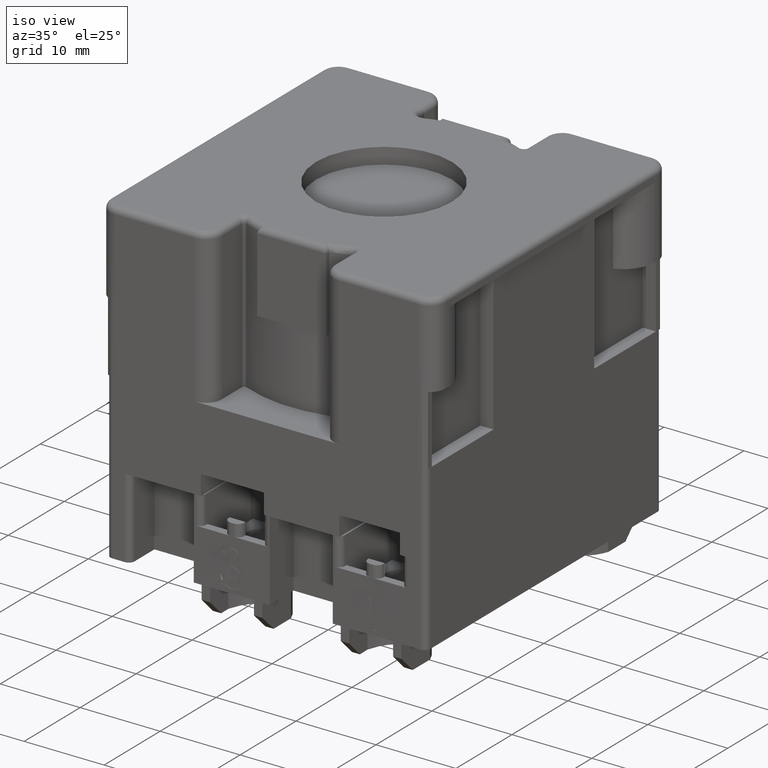
[diagram: clean part render]
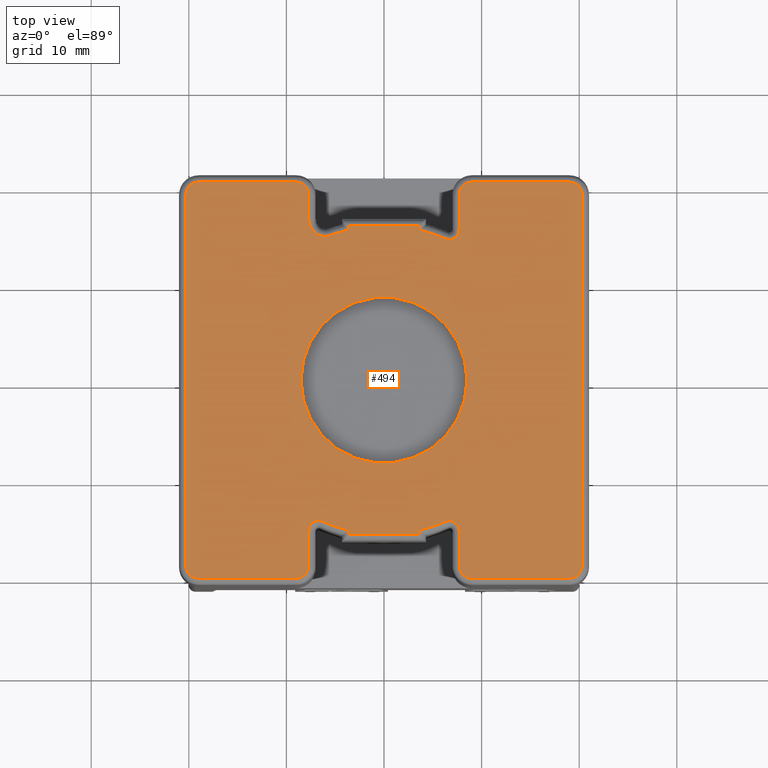
[diagram: tour spotlight — one face highlighted and labeled with its STEP entity id]
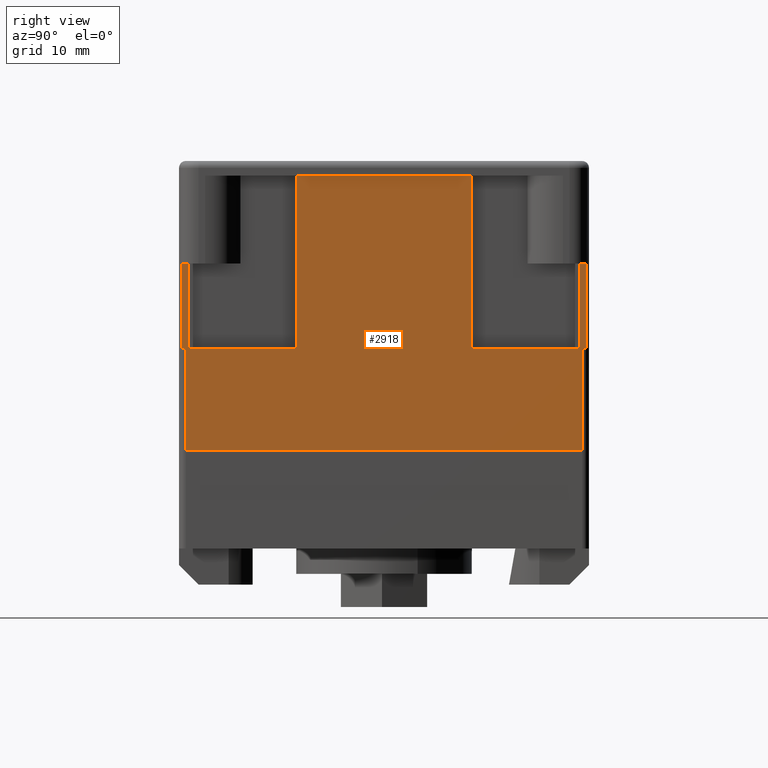
[diagram: tour spotlight — one face highlighted and labeled with its STEP entity id]
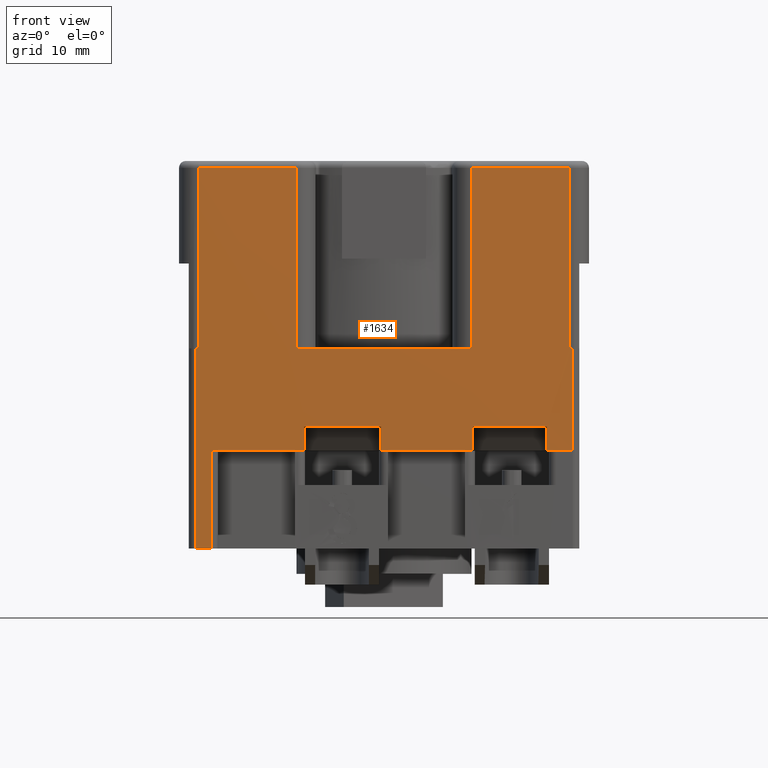
[diagram: tour spotlight — one face highlighted and labeled with its STEP entity id]
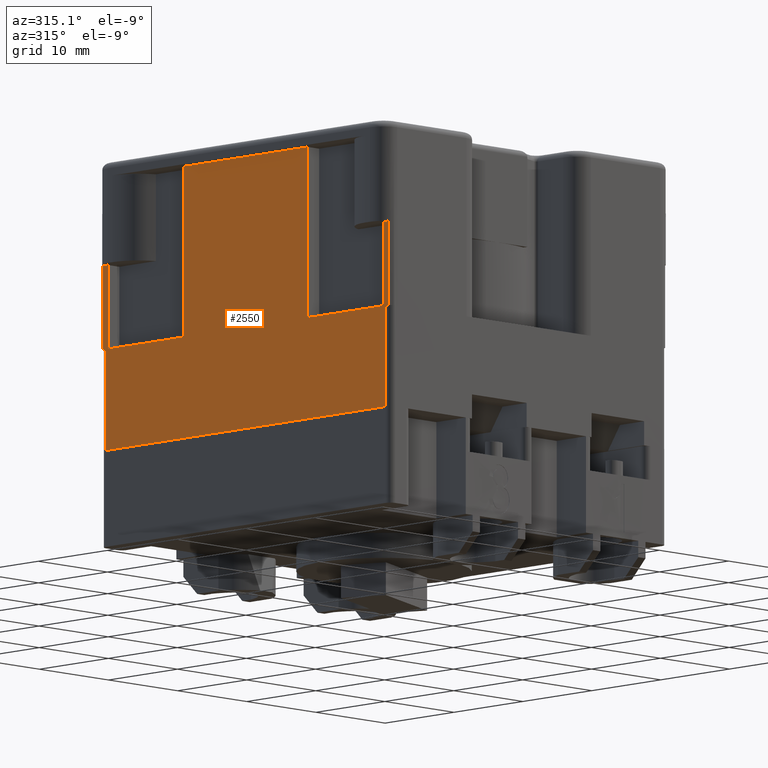
[diagram: tour spotlight — one face highlighted and labeled with its STEP entity id]
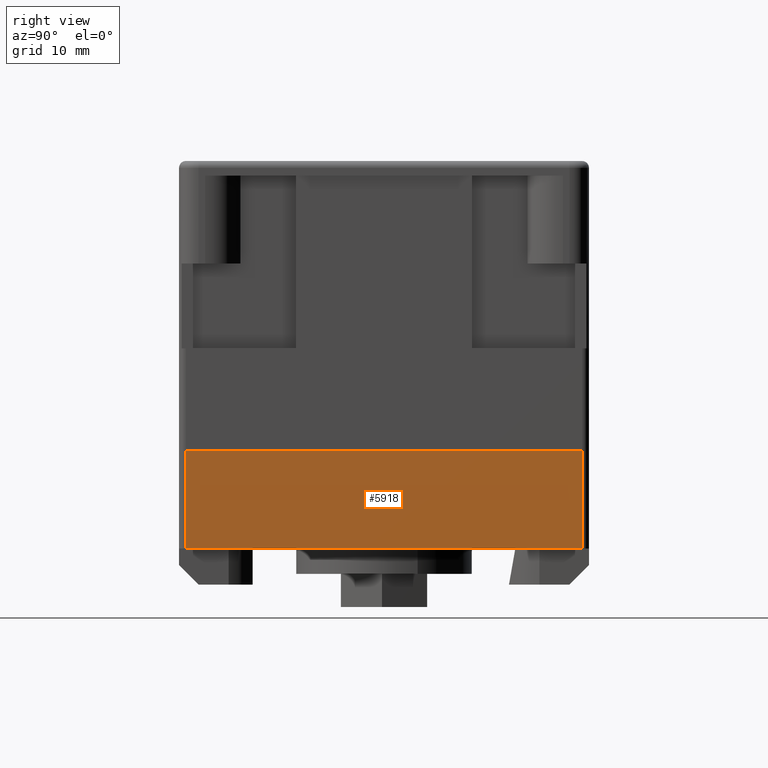
[diagram: tour spotlight — one face highlighted and labeled with its STEP entity id]
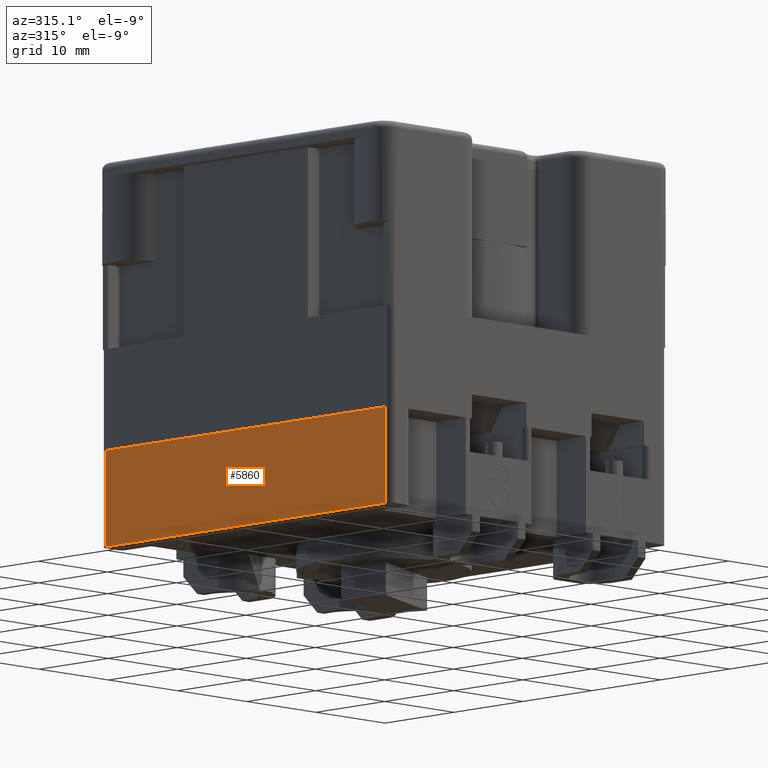
[diagram: tour spotlight — one face highlighted and labeled with its STEP entity id]
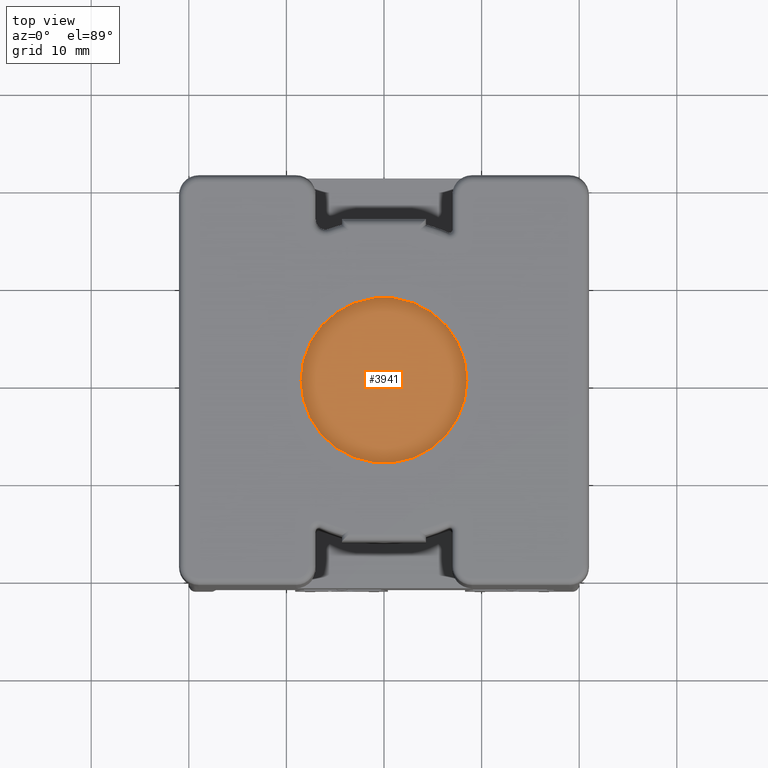
[diagram: tour spotlight — one face highlighted and labeled with its STEP entity id]
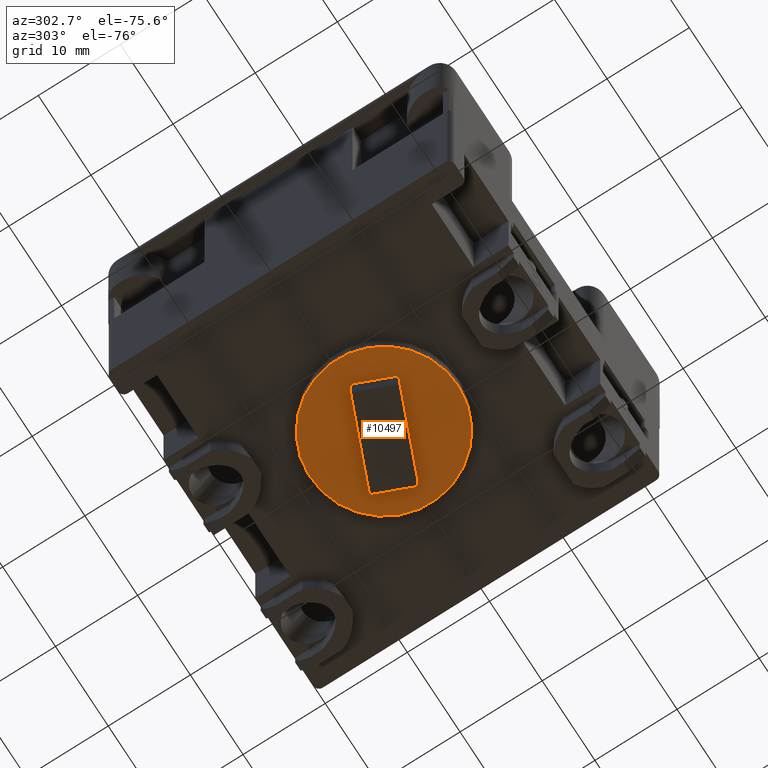
[diagram: tour spotlight — one face highlighted and labeled with its STEP entity id]
A machine part: a face-by-face anatomy tour. The part has 343 B-rep faces; the first image is the clean iso view, then the 8 largest visible faces are spotlighted one at a time (largest first), each with its STEP entity span.

Face 1 — top view, entity #494. In plain terms, the highlighted planar face has unit normal (0, 0, 1).
Definition (entity closure, byte-faithful):
#204=CARTESIAN_POINT('',(-21.0,-21.0,0.0));
#205=DIRECTION('',(0.0,0.0,1.0));
#206=DIRECTION('',(1.0,0.0,0.0));
#207=AXIS2_PLACEMENT_3D('',#204,#205,#206);
#208=PLANE('',#207);
#209=CARTESIAN_POINT('',(-19.0,-20.300000000000004,0.0));
#210=VERTEX_POINT('',#209);
#211=CARTESIAN_POINT('',(-9.0,-20.300000000000004,0.0));
#212=VERTEX_POINT('',#211);
#213=CARTESIAN_POINT('',(-19.0,-20.300000000000004,0.0));
#214=DIRECTION('',(1.0,0.0,0.0));
#215=VECTOR('',#214,10.0);
#216=LINE('',#213,#215);
#217=EDGE_CURVE('',#210,#212,#216,.T.);
#218=ORIENTED_EDGE('',*,*,#217,.T.);
#219=CARTESIAN_POINT('',(-7.7,-19.0,0.0));
#220=VERTEX_POINT('',#219);
#221=CARTESIAN_POINT('',(-9.0,-19.0,0.0));
#222=DIRECTION('',(0.0,0.0,1.0));
#223=DIRECTION('',(1.0,0.0,0.0));
#224=AXIS2_PLACEMENT_3D('',#221,#222,#223);
#225=CIRCLE('',#224,1.3);
#226=EDGE_CURVE('',#212,#220,#225,.T.);
#227=ORIENTED_EDGE('',*,*,#226,.T.);
#228=CARTESIAN_POINT('',(-7.7,-15.406167596128501,0.0));
#229=VERTEX_POINT('',#228);
#230=CARTESIAN_POINT('',(-7.7,-19.0,0.0));
#231=DIRECTION('',(0.0,1.0,0.0));
#232=VECTOR('',#231,3.593832403871499);
#233=LINE('',#230,#232);
#234=EDGE_CURVE('',#220,#229,#233,.T.);
#235=ORIENTED_EDGE('',*,*,#234,.T.);
#236=CARTESIAN_POINT('',(-6.301190476190479,-14.489133810644699,0.0));
#237=VERTEX_POINT('',#236);
#238=CARTESIAN_POINT('',(-6.7,-15.406167596128501,0.0));
#239=DIRECTION('',(0.0,0.0,-1.0));
#240=DIRECTION('',(1.0,0.0,0.0));
#241=AXIS2_PLACEMENT_3D('',#238,#239,#240);
#242=CIRCLE('',#241,1.0);
#243=EDGE_CURVE('',#229,#237,#242,.T.);
#244=ORIENTED_EDGE('',*,*,#243,.T.);
#245=CARTESIAN_POINT('',(-3.600000000000001,-15.384407690905801,0.0));
#246=VERTEX_POINT('',#245);
#247=CARTESIAN_POINT('',(-1.451603E-017,0.0,0.0));
#248=DIRECTION('',(0.0,0.0,1.0));
#249=DIRECTION('',(1.0,0.0,0.0));
#250=AXIS2_PLACEMENT_3D('',#247,#248,#249);
#251=CIRCLE('',#250,15.800000000000001);
#252=EDGE_CURVE('',#237,#246,#251,.T.);
#253=ORIENTED_EDGE('',*,*,#252,.T.);
#254=CARTESIAN_POINT('',(-3.600000000000001,-15.800000000000001,0.0));
#255=VERTEX_POINT('',#254);
#256=CARTESIAN_POINT('',(-3.600000000000001,-15.384407690905801,0.0));
#257=DIRECTION('',(0.0,-1.0,0.0));
#258=VECTOR('',#257,0.415592309094199);
#259=LINE('',#256,#258);
#260=EDGE_CURVE('',#246,#255,#259,.T.);
#261=ORIENTED_EDGE('',*,*,#260,.T.);
#262=CARTESIAN_POINT('',(3.600000000000001,-15.800000000000001,0.0));
#263=VERTEX_POINT('',#262);
#264=CARTESIAN_POINT('',(-3.600000000000001,-15.800000000000001,0.0));
#265=DIRECTION('',(1.0,0.0,0.0));
#266=VECTOR('',#265,7.200000000000001);
#267=LINE('',#264,#266);
#268=EDGE_CURVE('',#255,#263,#267,.T.);
#269=ORIENTED_EDGE('',*,*,#268,.T.);
#270=CARTESIAN_POINT('',(3.600000000000001,-15.384407690905801,0.0));
#271=VERTEX_POINT('',#270);
#272=CARTESIAN_POINT('',(3.600000000000001,-15.800000000000001,0.0));
#273=DIRECTION('',(0.0,1.0,0.0));
#274=VECTOR('',#273,0.415592309094199);
#275=LINE('',#272,#274);
#276=EDGE_CURVE('',#263,#271,#275,.T.);
#277=ORIENTED_EDGE('',*,*,#276,.T.);
#278=CARTESIAN_POINT('',(6.301190476190479,-14.489133810644699,0.0));
#279=VERTEX_POINT('',#278);
#280=CARTESIAN_POINT('',(-1.451603E-017,0.0,0.0));
#281=DIRECTION('',(0.0,0.0,1.0));
#282=DIRECTION('',(1.0,0.0,0.0));
#283=AXIS2_PLACEMENT_3D('',#280,#281,#282);
#284=CIRCLE('',#283,15.800000000000001);
#285=EDGE_CURVE('',#271,#279,#284,.T.);
#286=ORIENTED_EDGE('',*,*,#285,.T.);
#287=CARTESIAN_POINT('',(7.7,-15.406167596128501,0.0));
#288=VERTEX_POINT('',#287);
#289=CARTESIAN_POINT('',(6.7,-15.406167596128501,0.0));
#290=DIRECTION('',(0.0,0.0,-1.0));
#291=DIRECTION('',(1.0,0.0,0.0));
#292=AXIS2_PLACEMENT_3D('',#289,#290,#291);
#293=CIRCLE('',#292,1.0);
#294=EDGE_CURVE('',#279,#288,#293,.T.);
#295=ORIENTED_EDGE('',*,*,#294,.T.);
#296=CARTESIAN_POINT('',(7.7,-19.0,0.0));
#297=VERTEX_POINT('',#296);
#298=CARTESIAN_POINT('',(7.7,-15.406167596128501,0.0));
#299=DIRECTION('',(0.0,-1.0,0.0));
#300=VECTOR('',#299,3.593832403871499);
#301=LINE('',#298,#300);
#302=EDGE_CURVE('',#288,#297,#301,.T.);
#303=ORIENTED_EDGE('',*,*,#302,.T.);
#304=CARTESIAN_POINT('',(9.0,-20.300000000000004,0.0));
#305=VERTEX_POINT('',#304);
#306=CARTESIAN_POINT('',(9.0,-19.0,0.0));
#307=DIRECTION('',(0.0,0.0,1.0));
#308=DIRECTION('',(1.0,0.0,0.0));
#309=AXIS2_PLACEMENT_3D('',#306,#307,#308);
#310=CIRCLE('',#309,1.3);
#311=EDGE_CURVE('',#297,#305,#310,.T.);
#312=ORIENTED_EDGE('',*,*,#311,.T.);
#313=CARTESIAN_POINT('',(19.0,-20.300000000000004,0.0));
#314=VERTEX_POINT('',#313);
#315=CARTESIAN_POINT('',(9.0,-20.300000000000004,0.0));
#316=DIRECTION('',(1.0,0.0,0.0));
#317=VECTOR('',#316,10.0);
#318=LINE('',#315,#317);
#319=EDGE_CURVE('',#305,#314,#318,.T.);
#320=ORIENTED_EDGE('',*,*,#319,.T.);
#321=CARTESIAN_POINT('',(20.300000000000004,-19.0,0.0));
#322=VERTEX_POINT('',#321);
#323=CARTESIAN_POINT('',(19.0,-19.0,0.0));
#324=DIRECTION('',(0.0,0.0,1.0));
#325=DIRECTION('',(1.0,0.0,0.0));
#326=AXIS2_PLACEMENT_3D('',#323,#324,#325);
#327=CIRCLE('',#326,1.3);
#328=EDGE_CURVE('',#314,#322,#327,.T.);
#329=ORIENTED_EDGE('',*,*,#328,.T.);
#330=CARTESIAN_POINT('',(20.300000000000004,19.0,0.0));
#331=VERTEX_POINT('',#330);
#332=CARTESIAN_POINT('',(20.300000000000004,-19.0,0.0));
#333=DIRECTION('',(0.0,1.0,0.0));
#334=VECTOR('',#333,38.0);
#335=LINE('',#332,#334);
#336=EDGE_CURVE('',#322,#331,#335,.T.);
#337=ORIENTED_EDGE('',*,*,#336,.T.);
#338=CARTESIAN_POINT('',(19.0,20.300000000000004,0.0));
#339=VERTEX_POINT('',#338);
#340=CARTESIAN_POINT('',(19.0,19.0,0.0));
#341=DIRECTION('',(0.0,0.0,1.0));
#342=DIRECTION('',(1.0,0.0,0.0));
#343=AXIS2_PLACEMENT_3D('',#340,#341,#342);
#344=CIRCLE('',#343,1.3);
#345=EDGE_CURVE('',#331,#339,#344,.T.);
#346=ORIENTED_EDGE('',*,*,#345,.T.);
#347=CARTESIAN_POINT('',(9.0,20.300000000000004,0.0));
#348=VERTEX_POINT('',#347);
#349=CARTESIAN_POINT('',(19.0,20.300000000000004,0.0));
#350=DIRECTION('',(-1.0,0.0,0.0));
#351=VECTOR('',#350,10.0);
#352=LINE('',#349,#351);
#353=EDGE_CURVE('',#339,#348,#352,.T.);
#354=ORIENTED_EDGE('',*,*,#353,.T.);
#355=CARTESIAN_POINT('',(7.7,19.0,0.0));
#356=VERTEX_POINT('',#355);
#357=CARTESIAN_POINT('',(9.0,19.0,0.0));
#358=DIRECTION('',(0.0,0.0,1.0));
#359=DIRECTION('',(1.0,0.0,0.0));
#360=AXIS2_PLACEMENT_3D('',#357,#358,#359);
#361=CIRCLE('',#360,1.3);
#362=EDGE_CURVE('',#348,#356,#361,.T.);
#363=ORIENTED_EDGE('',*,*,#362,.T.);
#364=CARTESIAN_POINT('',(7.7,15.406167596128501,0.0));
#365=VERTEX_POINT('',#364);
#366=CARTESIAN_POINT('',(7.7,19.0,0.0));
#367=DIRECTION('',(0.0,-1.0,0.0));
#368=VECTOR('',#367,3.593832403871499);
#369=LINE('',#366,#368);
#370=EDGE_CURVE('',#356,#365,#369,.T.);
#371=ORIENTED_EDGE('',*,*,#370,.T.);
#372=CARTESIAN_POINT('',(6.301190476190479,14.489133810644699,0.0));
#373=VERTEX_POINT('',#372);
#374=CARTESIAN_POINT('',(6.7,15.406167596128501,0.0));
#375=DIRECTION('',(0.0,0.0,-1.0));
#376=DIRECTION('',(1.0,0.0,0.0));
#377=AXIS2_PLACEMENT_3D('',#374,#375,#376);
#378=CIRCLE('',#377,1.0);
#379=EDGE_CURVE('',#365,#373,#378,.T.);
#380=ORIENTED_EDGE('',*,*,#379,.T.);
#381=CARTESIAN_POINT('',(3.600000000000001,15.384407690905801,0.0));
#382=VERTEX_POINT('',#381);
#383=CARTESIAN_POINT('',(-1.451603E-017,0.0,0.0));
#384=DIRECTION('',(0.0,0.0,1.0));
#385=DIRECTION('',(1.0,0.0,0.0));
#386=AXIS2_PLACEMENT_3D('',#383,#384,#385);
#387=CIRCLE('',#386,15.800000000000001);
#388=EDGE_CURVE('',#373,#382,#387,.T.);
#389=ORIENTED_EDGE('',*,*,#388,.T.);
#390=CARTESIAN_POINT('',(3.600000000000001,15.800000000000001,0.0));
#391=VERTEX_POINT('',#390);
#392=CARTESIAN_POINT('',(3.60000000000014,15.384407690905801,0.0));
#393=DIRECTION('',(0.0,1.0,0.0));
#394=VECTOR('',#393,0.415592309094199);
#395=LINE('',#392,#394);
#396=EDGE_CURVE('',#382,#391,#395,.T.);
#397=ORIENTED_EDGE('',*,*,#396,.T.);
#398=CARTESIAN_POINT('',(-3.600000000000001,15.800000000000001,0.0));
#399=VERTEX_POINT('',#398);
#400=CARTESIAN_POINT('',(3.600000000000001,15.800000000000001,0.0));
#401=DIRECTION('',(-1.0,0.0,0.0));
#402=VECTOR('',#401,7.200000000000001);
#403=LINE('',#400,#402);
#404=EDGE_CURVE('',#391,#399,#403,.T.);
#405=ORIENTED_EDGE('',*,*,#404,.T.);
#406=CARTESIAN_POINT('',(-3.600000000000001,15.384407690905801,0.0));
#407=VERTEX_POINT('',#406);
#408=CARTESIAN_POINT('',(-3.60000000000014,15.800000000000001,0.0));
#409=DIRECTION('',(0.0,-1.0,0.0));
#410=VECTOR('',#409,0.415592309094199);
#411=LINE('',#408,#410);
#412=EDGE_CURVE('',#399,#407,#411,.T.);
#413=ORIENTED_EDGE('',*,*,#412,.T.);
#414=CARTESIAN_POINT('',(-5.41714285714286,14.842323378275601,0.0));
#415=VERTEX_POINT('',#414);
#416=CARTESIAN_POINT('',(-1.451603E-017,0.0,0.0));
#417=DIRECTION('',(0.0,0.0,1.0));
#418=DIRECTION('',(1.0,0.0,0.0));
#419=AXIS2_PLACEMENT_3D('',#416,#417,#418);
#420=CIRCLE('',#419,15.800000000000001);
#421=EDGE_CURVE('',#407,#415,#420,.T.);
#422=ORIENTED_EDGE('',*,*,#421,.T.);
#423=CARTESIAN_POINT('',(-7.7,16.439282222773599,0.0));
#424=VERTEX_POINT('',#423);
#425=CARTESIAN_POINT('',(-6.000000000000001,16.439282222773599,0.0));
#426=DIRECTION('',(0.0,0.0,-1.0));
#427=DIRECTION('',(1.0,0.0,0.0));
#428=AXIS2_PLACEMENT_3D('',#425,#426,#427);
#429=CIRCLE('',#428,1.7);
#430=EDGE_CURVE('',#415,#424,#429,.T.);
#431=ORIENTED_EDGE('',*,*,#430,.T.);
#432=CARTESIAN_POINT('',(-7.7,19.0,0.0));
#433=VERTEX_POINT('',#432);
#434=CARTESIAN_POINT('',(-7.7,16.439282222773599,0.0));
#435=DIRECTION('',(0.0,1.0,0.0));
#436=VECTOR('',#435,2.560717777226401);
#437=LINE('',#434,#436);
#438=EDGE_CURVE('',#424,#433,#437,.T.);
#439=ORIENTED_EDGE('',*,*,#438,.T.);
#440=CARTESIAN_POINT('',(-9.0,20.300000000000004,0.0));
#441=VERTEX_POINT('',#440);
#442=CARTESIAN_POINT('',(-9.0,19.0,0.0));
#443=DIRECTION('',(0.0,0.0,1.0));
#444=DIRECTION('',(1.0,0.0,0.0));
#445=AXIS2_PLACEMENT_3D('',#442,#443,#444);
#446=CIRCLE('',#445,1.3);
#447=EDGE_CURVE('',#433,#441,#446,.T.);
#448=ORIENTED_EDGE('',*,*,#447,.T.);
#449=CARTESIAN_POINT('',(-19.0,20.300000000000004,0.0));
#450=VERTEX_POINT('',#449);
#451=CARTESIAN_POINT('',(-9.0,20.300000000000004,0.0));
#452=DIRECTION('',(-1.0,0.0,0.0));
#453=VECTOR('',#452,10.0);
#454=LINE('',#451,#453);
#455=EDGE_CURVE('',#441,#450,#454,.T.);
#456=ORIENTED_EDGE('',*,*,#455,.T.);
#457=CARTESIAN_POINT('',(-20.300000000000004,19.0,0.0));
#458=VERTEX_POINT('',#457);
#459=CARTESIAN_POINT('',(-19.0,19.0,0.0));
#460=DIRECTION('',(0.0,0.0,1.0));
#461=DIRECTION('',(1.0,0.0,0.0));
#462=AXIS2_PLACEMENT_3D('',#459,#460,#461);
#463=CIRCLE('',#462,1.3);
#464=EDGE_CURVE('',#450,#458,#463,.T.);
#465=ORIENTED_EDGE('',*,*,#464,.T.);
#466=CARTESIAN_POINT('',(-20.300000000000004,-19.0,0.0));
#467=VERTEX_POINT('',#466);
#468=CARTESIAN_POINT('',(-20.300000000000004,19.0,0.0));
#469=DIRECTION('',(0.0,-1.0,0.0));
#470=VECTOR('',#469,38.0);
#471=LINE('',#468,#470);
#472=EDGE_CURVE('',#458,#467,#471,.T.);
#473=ORIENTED_EDGE('',*,*,#472,.T.);
#474=CARTESIAN_POINT('',(-19.0,-19.0,0.0));
#475=DIRECTION('',(0.0,0.0,1.0));
#476=DIRECTION('',(1.0,0.0,0.0));
#477=AXIS2_PLACEMENT_3D('',#474,#475,#476);
#478=CIRCLE('',#477,1.3);
#479=EDGE_CURVE('',#467,#210,#478,.T.);
#480=ORIENTED_EDGE('',*,*,#479,.T.);
#481=EDGE_LOOP('',(#218,#227,#235,#244,#253,#261,#269,#277,#286,#295,#303,#312,#320,#329,#337,#346,#354,#363,#371,#380,#389,#397,#405,#413,#422,#431,#439,#448,#456,#465,#473,#480));
#482=FACE_OUTER_BOUND('',#481,.T.);
#483=CARTESIAN_POINT('',(8.5,1.040950E-015,0.0));
#484=VERTEX_POINT('',#483);
#485=CARTESIAN_POINT('',(0.0,0.0,0.0));
#486=DIRECTION('',(0.0,0.0,-1.0));
#487=DIRECTION('',(1.0,0.0,0.0));
#488=AXIS2_PLACEMENT_3D('',#485,#486,#487);
#489=CIRCLE('',#488,8.5);
#490=EDGE_CURVE('',#484,#484,#489,.T.);
#491=ORIENTED_EDGE('',*,*,#490,.T.);
#492=EDGE_LOOP('',(#491));
#493=FACE_BOUND('',#492,.T.);
#494=ADVANCED_FACE('',(#482,#493),#208,.T.);

Face 2 — right view, entity #2918. In plain terms, the highlighted planar face has unit normal (1, 0, 0).
Definition (entity closure, byte-faithful):
#107=CARTESIAN_POINT('',(20.0,-20.732050807568903,-19.199999999999999));
#108=VERTEX_POINT('',#107);
#118=CARTESIAN_POINT('',(20.0,-20.300000000000004,-19.199999999999999));
#119=VERTEX_POINT('',#118);
#127=CARTESIAN_POINT('',(20.0,-20.300000000000004,-19.199999999999999));
#128=DIRECTION('',(0.0,-1.0,0.0));
#129=VECTOR('',#128,0.432050807568899);
#130=LINE('',#127,#129);
#131=EDGE_CURVE('',#119,#108,#130,.T.);
#141=CARTESIAN_POINT('',(20.0,20.732050807568903,-19.199999999999999));
#142=VERTEX_POINT('',#141);
#143=CARTESIAN_POINT('',(20.0,20.300000000000004,-19.199999999999999));
#144=VERTEX_POINT('',#143);
#145=CARTESIAN_POINT('',(20.0,20.732050807568903,-19.199999999999999));
#146=DIRECTION('',(0.0,-1.0,0.0));
#147=VECTOR('',#146,0.432050807568899);
#148=LINE('',#145,#147);
#149=EDGE_CURVE('',#142,#144,#148,.T.);
#2608=CARTESIAN_POINT('',(20.0,9.0,-1.5));
#2609=VERTEX_POINT('',#2608);
#2616=CARTESIAN_POINT('',(20.0,9.0,-19.199999999999999));
#2617=VERTEX_POINT('',#2616);
#2618=CARTESIAN_POINT('',(20.0,9.0,-1.5));
#2619=DIRECTION('',(0.0,0.0,-1.0));
#2620=VECTOR('',#2619,17.699999999999999);
#2621=LINE('',#2618,#2620);
#2622=EDGE_CURVE('',#2609,#2617,#2621,.T.);
#2657=CARTESIAN_POINT('',(20.0,-8.999999999999989,-1.5));
#2658=VERTEX_POINT('',#2657);
#2665=CARTESIAN_POINT('',(20.0,-8.999999999999989,-1.5));
#2666=DIRECTION('',(0.0,1.0,0.0));
#2667=VECTOR('',#2666,17.999999999999989);
#2668=LINE('',#2665,#2667);
#2669=EDGE_CURVE('',#2658,#2609,#2668,.T.);
#2688=CARTESIAN_POINT('',(20.0,20.0,-19.199999999999999));
#2689=VERTEX_POINT('',#2688);
#2690=CARTESIAN_POINT('',(20.0,20.0,-10.5));
#2691=VERTEX_POINT('',#2690);
#2692=CARTESIAN_POINT('',(20.0,20.0,-19.199999999999999));
#2693=DIRECTION('',(0.0,0.0,1.0));
#2694=VECTOR('',#2693,8.699999999999999);
#2695=LINE('',#2692,#2694);
#2696=EDGE_CURVE('',#2689,#2691,#2695,.T.);
#2729=CARTESIAN_POINT('',(20.0,-20.0,-10.5));
#2730=VERTEX_POINT('',#2729);
#2737=CARTESIAN_POINT('',(20.0,-20.0,-19.199999999999999));
#2738=VERTEX_POINT('',#2737);
#2739=CARTESIAN_POINT('',(20.0,-20.0,-10.5));
#2740=DIRECTION('',(0.0,0.0,-1.0));
#2741=VECTOR('',#2740,8.699999999999999);
#2742=LINE('',#2739,#2741);
#2743=EDGE_CURVE('',#2730,#2738,#2742,.T.);
#2761=CARTESIAN_POINT('',(20.0,-9.0,-19.199999999999999));
#2762=VERTEX_POINT('',#2761);
#2769=CARTESIAN_POINT('',(20.0,-9.0,-19.199999999999999));
#2770=DIRECTION('',(0.0,0.0,1.0));
#2771=VECTOR('',#2770,17.699999999999999);
#2772=LINE('',#2769,#2771);
#2773=EDGE_CURVE('',#2762,#2658,#2772,.T.);
#2822=CARTESIAN_POINT('',(20.0,-20.732050807568903,-10.5));
#2823=VERTEX_POINT('',#2822);
#2831=CARTESIAN_POINT('',(20.0,-20.0,-10.5));
#2832=DIRECTION('',(0.0,-1.0,0.0));
#2833=VECTOR('',#2832,0.732050807568903);
#2834=LINE('',#2831,#2833);
#2835=EDGE_CURVE('',#2730,#2823,#2834,.T.);
#2849=CARTESIAN_POINT('',(20.0,-21.0,-10.5));
#2850=DIRECTION('',(1.0,0.0,0.0));
#2851=DIRECTION('',(0.0,0.0,-1.0));
#2852=AXIS2_PLACEMENT_3D('',#2849,#2850,#2851);
#2853=PLANE('',#2852);
#2854=ORIENTED_EDGE('',*,*,#2835,.T.);
#2855=CARTESIAN_POINT('',(20.0,-20.732050807568903,-10.5));
#2856=DIRECTION('',(0.0,0.0,-1.0));
#2857=VECTOR('',#2856,8.699999999999999);
#2858=LINE('',#2855,#2857);
#2859=EDGE_CURVE('',#2823,#108,#2858,.T.);
#2860=ORIENTED_EDGE('',*,*,#2859,.T.);
#2861=ORIENTED_EDGE('',*,*,#131,.F.);
#2862=CARTESIAN_POINT('',(20.000029187598464,-20.30000146465089,-29.700000000000003));
#2863=VERTEX_POINT('',#2862);
#2864=CARTESIAN_POINT('',(20.0,-20.300000000000004,-19.199999999999999));
#2865=DIRECTION('',(0.0,0.0,-1.0));
#2866=VECTOR('',#2865,10.500000000000004);
#2867=LINE('',#2864,#2866);
#2868=EDGE_CURVE('',#119,#2863,#2867,.T.);
#2869=ORIENTED_EDGE('',*,*,#2868,.T.);
#2870=CARTESIAN_POINT('',(20.000029187597423,20.299997711229615,-29.700000000000003));
#2871=VERTEX_POINT('',#2870);
#2872=CARTESIAN_POINT('',(20.0,-20.300000000000004,-29.700000000000003));
#2873=DIRECTION('',(0.0,1.0,0.0));
#2874=VECTOR('',#2873,40.599997711181899);
#2875=LINE('',#2872,#2874);
#2876=EDGE_CURVE('',#2863,#2871,#2875,.T.);
#2877=ORIENTED_EDGE('',*,*,#2876,.T.);
#2878=CARTESIAN_POINT('',(20.0,20.300000000000004,-19.199999999999999));
#2879=DIRECTION('',(0.0,0.0,-1.0));
#2880=VECTOR('',#2879,10.500000000000004);
#2881=LINE('',#2878,#2880);
#2882=EDGE_CURVE('',#144,#2871,#2881,.T.);
#2883=ORIENTED_EDGE('',*,*,#2882,.F.);
#2884=ORIENTED_EDGE('',*,*,#149,.F.);
#2885=CARTESIAN_POINT('',(20.0,20.732050807568903,-10.5));
#2886=VERTEX_POINT('',#2885);
#2887=CARTESIAN_POINT('',(20.0,20.732050807568903,-19.199999999999999));
#2888=DIRECTION('',(0.0,0.0,1.0));
#2889=VECTOR('',#2888,8.699999999999999);
#2890=LINE('',#2887,#2889);
#2891=EDGE_CURVE('',#142,#2886,#2890,.T.);
#2892=ORIENTED_EDGE('',*,*,#2891,.T.);
#2893=CARTESIAN_POINT('',(20.0,20.732050807568903,-10.5));
#2894=DIRECTION('',(0.0,-1.0,0.0));
#2895=VECTOR('',#2894,0.732050807568903);
#2896=LINE('',#2893,#2895);
#2897=EDGE_CURVE('',#2886,#2691,#2896,.T.);
#2898=ORIENTED_EDGE('',*,*,#2897,.T.);
#2899=ORIENTED_EDGE('',*,*,#2696,.F.);
#2900=CARTESIAN_POINT('',(20.0,9.0,-19.199999999999999));
#2901=DIRECTION('',(0.0,1.0,0.0));
#2902=VECTOR('',#2901,11.0);
#2903=LINE('',#2900,#2902);
#2904=EDGE_CURVE('',#2617,#2689,#2903,.T.);
#2905=ORIENTED_EDGE('',*,*,#2904,.F.);
#2906=ORIENTED_EDGE('',*,*,#2622,.F.);
#2907=ORIENTED_EDGE('',*,*,#2669,.F.);
#2908=ORIENTED_EDGE('',*,*,#2773,.F.);
#2909=CARTESIAN_POINT('',(20.0,-20.0,-19.199999999999999));
#2910=DIRECTION('',(0.0,1.0,0.0));
#2911=VECTOR('',#2910,11.0);
#2912=LINE('',#2909,#2911);
#2913=EDGE_CURVE('',#2738,#2762,#2912,.T.);
#2914=ORIENTED_EDGE('',*,*,#2913,.F.);
#2915=ORIENTED_EDGE('',*,*,#2743,.F.);
#2916=EDGE_LOOP('',(#2854,#2860,#2861,#2869,#2877,#2883,#2884,#2892,#2898,#2899,#2905,#2906,#2907,#2908,#2914,#2915));
#2917=FACE_OUTER_BOUND('',#2916,.T.);
#2918=ADVANCED_FACE('',(#2917),#2853,.T.);

Face 3 — front view, entity #1634. In plain terms, the highlighted planar face has unit normal (0, -1, 0).
Definition (entity closure, byte-faithful):
#1385=CARTESIAN_POINT('',(-21.0,-21.0,-19.199999999999999));
#1386=DIRECTION('',(0.0,-1.0,0.0));
#1387=DIRECTION('',(0.0,0.0,-1.0));
#1388=AXIS2_PLACEMENT_3D('',#1385,#1386,#1387);
#1389=PLANE('',#1388);
#1390=CARTESIAN_POINT('',(19.0,-21.0,-19.199999999999999));
#1391=VERTEX_POINT('',#1390);
#1392=CARTESIAN_POINT('',(19.0,-21.0,-0.699999999999999));
#1393=VERTEX_POINT('',#1392);
#1394=CARTESIAN_POINT('',(19.0,-21.0,-19.199999999999999));
#1395=DIRECTION('',(0.0,0.0,1.0));
#1396=VECTOR('',#1395,18.5);
#1397=LINE('',#1394,#1396);
#1398=EDGE_CURVE('',#1391,#1393,#1397,.T.);
#1399=ORIENTED_EDGE('',*,*,#1398,.T.);
#1400=CARTESIAN_POINT('',(9.0,-21.0,-0.699999999999999));
#1401=VERTEX_POINT('',#1400);
#1402=CARTESIAN_POINT('',(19.0,-21.0,-0.699999999999999));
#1403=DIRECTION('',(-1.0,0.0,0.0));
#1404=VECTOR('',#1403,10.0);
#1405=LINE('',#1402,#1404);
#1406=EDGE_CURVE('',#1393,#1401,#1405,.T.);
#1407=ORIENTED_EDGE('',*,*,#1406,.T.);
#1408=CARTESIAN_POINT('',(9.0,-21.0,-19.199999999999999));
#1409=VERTEX_POINT('',#1408);
#1410=CARTESIAN_POINT('',(9.0,-21.0,-0.699999999999999));
#1411=DIRECTION('',(0.0,0.0,-1.0));
#1412=VECTOR('',#1411,18.5);
#1413=LINE('',#1410,#1412);
#1414=EDGE_CURVE('',#1401,#1409,#1413,.T.);
#1415=ORIENTED_EDGE('',*,*,#1414,.T.);
#1416=CARTESIAN_POINT('',(-9.0,-21.0,-19.199999999999999));
#1417=VERTEX_POINT('',#1416);
#1418=CARTESIAN_POINT('',(-9.0,-21.0,-19.199999999999999));
#1419=DIRECTION('',(1.0,0.0,0.0));
#1420=VECTOR('',#1419,18.0);
#1421=LINE('',#1418,#1420);
#1422=EDGE_CURVE('',#1417,#1409,#1421,.T.);
#1423=ORIENTED_EDGE('',*,*,#1422,.F.);
#1424=CARTESIAN_POINT('',(-9.0,-21.0,-0.699999999999999));
#1425=VERTEX_POINT('',#1424);
#1426=CARTESIAN_POINT('',(-9.0,-21.0,-19.199999999999999));
#1427=DIRECTION('',(0.0,0.0,1.0));
#1428=VECTOR('',#1427,18.5);
#1429=LINE('',#1426,#1428);
#1430=EDGE_CURVE('',#1417,#1425,#1429,.T.);
#1431=ORIENTED_EDGE('',*,*,#1430,.T.);
#1432=CARTESIAN_POINT('',(-19.0,-21.0,-0.699999999999999));
#1433=VERTEX_POINT('',#1432);
#1434=CARTESIAN_POINT('',(-9.0,-21.0,-0.699999999999999));
#1435=DIRECTION('',(-1.0,0.0,0.0));
#1436=VECTOR('',#1435,10.0);
#1437=LINE('',#1434,#1436);
#1438=EDGE_CURVE('',#1425,#1433,#1437,.T.);
#1439=ORIENTED_EDGE('',*,*,#1438,.T.);
#1440=CARTESIAN_POINT('',(-19.0,-21.0,-19.199999999999999));
#1441=VERTEX_POINT('',#1440);
#1442=CARTESIAN_POINT('',(-19.0,-21.0,-0.699999999999999));
#1443=DIRECTION('',(0.0,0.0,-1.0));
#1444=VECTOR('',#1443,18.5);
#1445=LINE('',#1442,#1444);
#1446=EDGE_CURVE('',#1433,#1441,#1445,.T.);
#1447=ORIENTED_EDGE('',*,*,#1446,.T.);
#1448=CARTESIAN_POINT('',(-19.29393538623917,-20.995624652517986,-19.199999999999999));
#1449=VERTEX_POINT('',#1448);
#1450=CARTESIAN_POINT('',(-19.0,-18.999999999999808,-19.199999999999999));
#1451=DIRECTION('',(0.0,0.0,-1.0));
#1452=DIRECTION('',(-0.147201880519733,-0.989106468673345,0.0));
#1453=AXIS2_PLACEMENT_3D('',#1450,#1451,#1452);
#1454=CIRCLE('',#1453,2.000000000000192);
#1455=EDGE_CURVE('',#1441,#1449,#1454,.T.);
#1456=ORIENTED_EDGE('',*,*,#1455,.T.);
#1457=CARTESIAN_POINT('',(-19.299999967931225,-21.000004553406917,-29.700000000000003));
#1458=VERTEX_POINT('',#1457);
#1459=CARTESIAN_POINT('',(-19.300000000000203,-21.0,-19.199999999999999));
#1460=DIRECTION('',(0.0,0.0,-1.0));
#1461=VECTOR('',#1460,10.500000000000004);
#1462=LINE('',#1459,#1461);
#1463=EDGE_CURVE('',#1449,#1458,#1462,.T.);
#1464=ORIENTED_EDGE('',*,*,#1463,.T.);
#1465=CARTESIAN_POINT('',(-19.299932449259465,-21.000001520149848,-39.700000000000003));
#1466=VERTEX_POINT('',#1465);
#1467=CARTESIAN_POINT('',(-19.299932449259501,-21.0000030398364,-39.700000000000003));
#1468=DIRECTION('',(0.0,0.0,1.0));
#1469=VECTOR('',#1468,10.000000000000004);
#1470=LINE('',#1467,#1469);
#1471=EDGE_CURVE('',#1466,#1458,#1470,.T.);
#1472=ORIENTED_EDGE('',*,*,#1471,.F.);
#1473=CARTESIAN_POINT('',(-17.699937717846385,-21.000000776053199,-39.700000000000003));
#1474=VERTEX_POINT('',#1473);
#1475=CARTESIAN_POINT('',(-19.299932449259465,-20.999999928393599,-39.700000000000003));
#1476=DIRECTION('',(1.0,0.0,0.0));
#1477=VECTOR('',#1476,1.59999473141308);
#1478=LINE('',#1475,#1477);
#1479=EDGE_CURVE('',#1466,#1474,#1478,.T.);
#1480=ORIENTED_EDGE('',*,*,#1479,.T.);
#1481=CARTESIAN_POINT('',(-17.699937717846385,-21.000000776053206,-29.700000000000003));
#1482=VERTEX_POINT('',#1481);
#1483=CARTESIAN_POINT('',(-17.699937717854205,-21.0,-39.700000000000003));
#1484=DIRECTION('',(0.0,0.0,1.0));
#1485=VECTOR('',#1484,10.000000000000004);
#1486=LINE('',#1483,#1485);
#1487=EDGE_CURVE('',#1474,#1482,#1486,.T.);
#1488=ORIENTED_EDGE('',*,*,#1487,.T.);
#1489=CARTESIAN_POINT('',(-9.099935732734149,-21.000001158935731,-29.700000000000003));
#1490=VERTEX_POINT('',#1489);
#1491=CARTESIAN_POINT('',(-17.699937717846385,-21.0,-29.700000000000003));
#1492=DIRECTION('',(1.0,0.0,0.0));
#1493=VECTOR('',#1492,8.600001985112236);
#1494=LINE('',#1491,#1493);
#1495=EDGE_CURVE('',#1482,#1490,#1494,.T.);
#1496=ORIENTED_EDGE('',*,*,#1495,.T.);
#1497=CARTESIAN_POINT('',(-8.799932488190388,-21.000002515558901,-29.700000000000003));
#1498=VERTEX_POINT('',#1497);
#1499=CARTESIAN_POINT('',(-9.099935732734053,-21.000002316635808,-29.700000000000003));
#1500=DIRECTION('',(0.999999999999996,0.000000084093031,0.0));
#1501=VECTOR('',#1500,0.300003244543391);
#1502=LINE('',#1499,#1501);
#1503=EDGE_CURVE('',#1490,#1498,#1502,.T.);
#1504=ORIENTED_EDGE('',*,*,#1503,.T.);
#1505=CARTESIAN_POINT('',(-8.200000000000099,-21.0,-29.700000000000003));
#1506=VERTEX_POINT('',#1505);
#1507=CARTESIAN_POINT('',(-8.799932488190388,-21.0,-29.700000000000003));
#1508=DIRECTION('',(1.0,0.0,0.0));
#1509=VECTOR('',#1508,0.599932488190287);
#1510=LINE('',#1507,#1509);
#1511=EDGE_CURVE('',#1498,#1506,#1510,.T.);
#1512=ORIENTED_EDGE('',*,*,#1511,.T.);
#1513=CARTESIAN_POINT('',(-8.200000000000099,-21.0,-27.200000000000003));
#1514=VERTEX_POINT('',#1513);
#1515=CARTESIAN_POINT('',(-8.200000000000099,-21.0,-27.200000000000003));
#1516=DIRECTION('',(0.0,0.0,-1.0));
#1517=VECTOR('',#1516,2.5);
#1518=LINE('',#1515,#1517);
#1519=EDGE_CURVE('',#1514,#1506,#1518,.T.);
#1520=ORIENTED_EDGE('',*,*,#1519,.F.);
#1521=CARTESIAN_POINT('',(-0.300000000000133,-21.0,-27.200000000000003));
#1522=VERTEX_POINT('',#1521);
#1523=CARTESIAN_POINT('',(-8.200000000000099,-21.0,-27.200000000000003));
#1524=DIRECTION('',(1.0,0.0,0.0));
#1525=VECTOR('',#1524,7.899999999999966);
#1526=LINE('',#1523,#1525);
#1527=EDGE_CURVE('',#1514,#1522,#1526,.T.);
#1528=ORIENTED_EDGE('',*,*,#1527,.T.);
#1529=CARTESIAN_POINT('',(-0.300000000000133,-21.0,-29.700000000000003));
#1530=VERTEX_POINT('',#1529);
#1531=CARTESIAN_POINT('',(-0.300000000000133,-21.0,-27.200000000000003));
#1532=DIRECTION('',(0.0,0.0,-1.0));
#1533=VECTOR('',#1532,2.5);
#1534=LINE('',#1531,#1533);
#1535=EDGE_CURVE('',#1522,#1530,#1534,.T.);
#1536=ORIENTED_EDGE('',*,*,#1535,.T.);
#1537=CARTESIAN_POINT('',(0.200067511809647,-21.000002341250656,-29.700000000000003));
#1538=VERTEX_POINT('',#1537);
#1539=CARTESIAN_POINT('',(-0.300000000000133,-21.0,-29.700000000000003));
#1540=DIRECTION('',(1.0,0.0,0.0));
#1541=VECTOR('',#1540,0.50006751180978);
#1542=LINE('',#1539,#1541);
#1543=EDGE_CURVE('',#1530,#1538,#1542,.T.);
#1544=ORIENTED_EDGE('',*,*,#1543,.T.);
#1545=CARTESIAN_POINT('',(0.400064286977435,-21.000000759649925,-29.700000000000003));
#1546=VERTEX_POINT('',#1545);
#1547=CARTESIAN_POINT('',(0.200067511809579,-21.000001534570313,-29.700000000000003));
#1548=DIRECTION('',(0.999999999999997,0.000000084093023,0.0));
#1549=VECTOR('',#1548,0.199996774883677);
#1550=LINE('',#1547,#1549);
#1551=EDGE_CURVE('',#1538,#1546,#1550,.T.);
#1552=ORIENTED_EDGE('',*,*,#1551,.T.);
#1553=CARTESIAN_POINT('',(8.29960193725057,-21.00000042741938,-29.700000000000003));
#1554=VERTEX_POINT('',#1553);
#1555=CARTESIAN_POINT('',(0.400064286977435,-21.0,-29.700000000000003));
#1556=DIRECTION('',(1.0,0.0,0.0));
#1557=VECTOR('',#1556,7.899537650273134);
#1558=LINE('',#1555,#1557);
#1559=EDGE_CURVE('',#1546,#1554,#1558,.T.);
#1560=ORIENTED_EDGE('',*,*,#1559,.T.);
#1561=CARTESIAN_POINT('',(8.600061408294003,-21.000000793384149,-29.700000000000003));
#1562=VERTEX_POINT('',#1561);
#1563=CARTESIAN_POINT('',(8.299601937250605,-21.00000085345588,-29.700000000000003));
#1564=DIRECTION('',(0.999999999999996,0.000000084093032,0.0));
#1565=VECTOR('',#1564,0.300459471043397);
#1566=LINE('',#1563,#1565);
#1567=EDGE_CURVE('',#1554,#1562,#1566,.T.);
#1568=ORIENTED_EDGE('',*,*,#1567,.T.);
#1569=CARTESIAN_POINT('',(9.099999999999941,-21.0,-29.700000000000003));
#1570=VERTEX_POINT('',#1569);
#1571=CARTESIAN_POINT('',(8.600061408294003,-21.0,-29.700000000000003));
#1572=DIRECTION('',(1.0,0.0,0.0));
#1573=VECTOR('',#1572,0.499938591705938);
#1574=LINE('',#1571,#1573);
#1575=EDGE_CURVE('',#1562,#1570,#1574,.T.);
#1576=ORIENTED_EDGE('',*,*,#1575,.T.);
#1577=CARTESIAN_POINT('',(9.099999999999941,-21.0,-27.200000000000003));
#1578=VERTEX_POINT('',#1577);
#1579=CARTESIAN_POINT('',(9.099999999999941,-21.0,-27.200000000000003));
#1580=DIRECTION('',(0.0,0.0,-1.0));
#1581=VECTOR('',#1580,2.5);
#1582=LINE('',#1579,#1581);
#1583=EDGE_CURVE('',#1578,#1570,#1582,.T.);
#1584=ORIENTED_EDGE('',*,*,#1583,.F.);
#1585=CARTESIAN_POINT('',(16.699999999999903,-21.0,-27.200000000000003));
#1586=VERTEX_POINT('',#1585);
#1587=CARTESIAN_POINT('',(16.699999999999903,-21.0,-27.200000000000003));
#1588=DIRECTION('',(-1.0,0.0,0.0));
#1589=VECTOR('',#1588,7.599999999999962);
#1590=LINE('',#1587,#1589);
#1591=EDGE_CURVE('',#1586,#1578,#1590,.T.);
#1592=ORIENTED_EDGE('',*,*,#1591,.F.);
#1593=CARTESIAN_POINT('',(16.699999999999903,-21.0,-29.700000000000003));
#1594=VERTEX_POINT('',#1593);
#1595=CARTESIAN_POINT('',(16.699999999999903,-21.0,-27.200000000000003));
#1596=DIRECTION('',(0.0,0.0,-1.0));
#1597=VECTOR('',#1596,2.5);
#1598=LINE('',#1595,#1597);
#1599=EDGE_CURVE('',#1586,#1594,#1598,.T.);
#1600=ORIENTED_EDGE('',*,*,#1599,.T.);
#1601=CARTESIAN_POINT('',(17.600061408294057,-21.000000793536024,-29.700000000000003));
#1602=VERTEX_POINT('',#1601);
#1603=CARTESIAN_POINT('',(16.699999999999907,-21.0,-29.700000000000003));
#1604=DIRECTION('',(1.0,0.0,0.0));
#1605=VECTOR('',#1604,0.900061408294153);
#1606=LINE('',#1603,#1605);
#1607=EDGE_CURVE('',#1594,#1602,#1606,.T.);
#1608=ORIENTED_EDGE('',*,*,#1607,.T.);
#1609=CARTESIAN_POINT('',(19.300030674177599,-21.000000724019536,-29.700000000000003));
#1610=VERTEX_POINT('',#1609);
#1611=CARTESIAN_POINT('',(17.600061408293993,-21.000000071352019,-29.700000000000003));
#1612=DIRECTION('',(0.999999999999996,0.000000084093033,0.0));
#1613=VECTOR('',#1612,1.699969265883545);
#1614=LINE('',#1611,#1613);
#1615=EDGE_CURVE('',#1602,#1610,#1614,.T.);
#1616=ORIENTED_EDGE('',*,*,#1615,.T.);
#1617=CARTESIAN_POINT('',(19.29393538623896,-20.995624652517854,-19.199999999999999));
#1618=VERTEX_POINT('',#1617);
#1619=CARTESIAN_POINT('',(19.299999999999905,-21.0,-19.199999999999999));
#1620=DIRECTION('',(0.0,0.0,-1.0));
#1621=VECTOR('',#1620,10.500000000000004);
#1622=LINE('',#1619,#1621);
#1623=EDGE_CURVE('',#1618,#1610,#1622,.T.);
#1624=ORIENTED_EDGE('',*,*,#1623,.F.);
#1625=CARTESIAN_POINT('',(19.000000000000075,-19.000000000000419,-19.199999999999999));
#1626=DIRECTION('',(0.0,0.0,-1.0));
#1627=DIRECTION('',(0.0,-1.0,0.0));
#1628=AXIS2_PLACEMENT_3D('',#1625,#1626,#1627);
#1629=CIRCLE('',#1628,1.99999999999958);
#1630=EDGE_CURVE('',#1618,#1391,#1629,.T.);
#1631=ORIENTED_EDGE('',*,*,#1630,.T.);
#1632=EDGE_LOOP('',(#1399,#1407,#1415,#1423,#1431,#1439,#1447,#1456,#1464,#1472,#1480,#1488,#1496,#1504,#1512,#1520,#1528,#1536,#1544,#1552,#1560,#1568,#1576,#1584,#1592,#1600,#1608,#1616,#1624,#1631));
#1633=FACE_OUTER_BOUND('',#1632,.T.);
#1634=ADVANCED_FACE('',(#1633),#1389,.T.);

Face 4 — auxiliary view, entity #2550. In plain terms, the highlighted planar face has unit normal (-1, 0, 0).
Definition (entity closure, byte-faithful):
#73=CARTESIAN_POINT('',(-20.0,-20.300000000000004,-19.199999999999999));
#74=VERTEX_POINT('',#73);
#75=CARTESIAN_POINT('',(-20.0,-20.732050807568903,-19.199999999999999));
#76=VERTEX_POINT('',#75);
#77=CARTESIAN_POINT('',(-20.0,-20.300000000000004,-19.199999999999999));
#78=DIRECTION('',(0.0,-1.0,0.0));
#79=VECTOR('',#78,0.432050807568899);
#80=LINE('',#77,#79);
#81=EDGE_CURVE('',#74,#76,#80,.T.);
#175=CARTESIAN_POINT('',(-20.0,20.732050807568903,-19.199999999999999));
#176=VERTEX_POINT('',#175);
#186=CARTESIAN_POINT('',(-20.0,20.300000000000004,-19.199999999999999));
#187=VERTEX_POINT('',#186);
#195=CARTESIAN_POINT('',(-20.0,20.732050807568903,-19.199999999999999));
#196=DIRECTION('',(0.0,-1.0,0.0));
#197=VECTOR('',#196,0.432050807568899);
#198=LINE('',#195,#197);
#199=EDGE_CURVE('',#176,#187,#198,.T.);
#1650=CARTESIAN_POINT('',(-20.0,20.0,-10.5));
#1651=VERTEX_POINT('',#1650);
#1658=CARTESIAN_POINT('',(-20.0,20.0,-19.199999999999999));
#1659=VERTEX_POINT('',#1658);
#1660=CARTESIAN_POINT('',(-20.0,20.0,-19.199999999999999));
#1661=DIRECTION('',(0.0,0.0,1.0));
#1662=VECTOR('',#1661,8.699999999999999);
#1663=LINE('',#1660,#1662);
#1664=EDGE_CURVE('',#1659,#1651,#1663,.T.);
#1680=CARTESIAN_POINT('',(-20.0,-9.0,-19.199999999999999));
#1681=VERTEX_POINT('',#1680);
#1682=CARTESIAN_POINT('',(-20.0,-9.0,-1.5));
#1683=VERTEX_POINT('',#1682);
#1684=CARTESIAN_POINT('',(-20.0,-9.0,-19.199999999999999));
#1685=DIRECTION('',(0.0,0.0,1.0));
#1686=VECTOR('',#1685,17.699999999999999);
#1687=LINE('',#1684,#1686);
#1688=EDGE_CURVE('',#1681,#1683,#1687,.T.);
#1711=CARTESIAN_POINT('',(-20.0,9.0,-1.5));
#1712=VERTEX_POINT('',#1711);
#1713=CARTESIAN_POINT('',(-20.0,9.0,-19.199999999999999));
#1714=VERTEX_POINT('',#1713);
#1715=CARTESIAN_POINT('',(-20.0,9.0,-1.5));
#1716=DIRECTION('',(0.0,0.0,-1.0));
#1717=VECTOR('',#1716,17.699999999999999);
#1718=LINE('',#1715,#1717);
#1719=EDGE_CURVE('',#1712,#1714,#1718,.T.);
#2377=CARTESIAN_POINT('',(-20.0,-20.0,-10.5));
#2378=VERTEX_POINT('',#2377);
#2379=CARTESIAN_POINT('',(-20.0,-20.0,-19.199999999999999));
#2380=VERTEX_POINT('',#2379);
#2381=CARTESIAN_POINT('',(-20.0,-20.0,-10.5));
#2382=DIRECTION('',(0.0,0.0,-1.0));
#2383=VECTOR('',#2382,8.699999999999999);
#2384=LINE('',#2381,#2383);
#2385=EDGE_CURVE('',#2378,#2380,#2384,.T.);
#2433=CARTESIAN_POINT('',(-20.0,-9.0,-1.5));
#2434=DIRECTION('',(0.0,1.0,0.0));
#2435=VECTOR('',#2434,18.0);
#2436=LINE('',#2433,#2435);
#2437=EDGE_CURVE('',#1683,#1712,#2436,.T.);
#2474=CARTESIAN_POINT('',(-20.0,-9.0,-1.5));
#2475=DIRECTION('',(-1.0,0.0,0.0));
#2476=DIRECTION('',(0.0,0.0,1.0));
#2477=AXIS2_PLACEMENT_3D('',#2474,#2475,#2476);
#2478=PLANE('',#2477);
#2479=ORIENTED_EDGE('',*,*,#1688,.T.);
#2480=ORIENTED_EDGE('',*,*,#2437,.T.);
#2481=ORIENTED_EDGE('',*,*,#1719,.T.);
#2482=CARTESIAN_POINT('',(-20.000000000000099,20.0,-19.199999999999999));
#2483=DIRECTION('',(0.0,-1.0,0.0));
#2484=VECTOR('',#2483,11.0);
#2485=LINE('',#2482,#2484);
#2486=EDGE_CURVE('',#1659,#1714,#2485,.T.);
#2487=ORIENTED_EDGE('',*,*,#2486,.F.);
#2488=ORIENTED_EDGE('',*,*,#1664,.T.);
#2489=CARTESIAN_POINT('',(-20.0,20.732050807568903,-10.5));
#2490=VERTEX_POINT('',#2489);
#2491=CARTESIAN_POINT('',(-20.0,20.732050807568903,-10.5));
#2492=DIRECTION('',(0.0,-1.0,0.0));
#2493=VECTOR('',#2492,0.732050807568903);
#2494=LINE('',#2491,#2493);
#2495=EDGE_CURVE('',#2490,#1651,#2494,.T.);
#2496=ORIENTED_EDGE('',*,*,#2495,.F.);
#2497=CARTESIAN_POINT('',(-20.0,20.732050807568903,-10.5));
#2498=DIRECTION('',(0.0,0.0,-1.0));
#2499=VECTOR('',#2498,8.699999999999999);
#2500=LINE('',#2497,#2499);
#2501=EDGE_CURVE('',#2490,#176,#2500,.T.);
#2502=ORIENTED_EDGE('',*,*,#2501,.T.);
#2503=ORIENTED_EDGE('',*,*,#199,.T.);
#2504=CARTESIAN_POINT('',(-19.999966117512397,20.299997941834643,-29.700000000000003));
#2505=VERTEX_POINT('',#2504);
#2506=CARTESIAN_POINT('',(-20.000000000000099,20.300000000000004,-19.199999999999999));
#2507=DIRECTION('',(0.0,0.0,-1.0));
#2508=VECTOR('',#2507,10.500000000000004);
#2509=LINE('',#2506,#2508);
#2510=EDGE_CURVE('',#187,#2505,#2509,.T.);
#2511=ORIENTED_EDGE('',*,*,#2510,.T.);
#2512=CARTESIAN_POINT('',(-19.999966222842307,-20.300001556512729,-29.700000000000003));
#2513=VERTEX_POINT('',#2512);
#2514=CARTESIAN_POINT('',(-20.0,20.299998627282694,-29.700000000000003));
#2515=DIRECTION('',(0.0,-1.0,0.0));
#2516=VECTOR('',#2515,40.599998627282694);
#2517=LINE('',#2514,#2516);
#2518=EDGE_CURVE('',#2505,#2513,#2517,.T.);
#2519=ORIENTED_EDGE('',*,*,#2518,.T.);
#2520=CARTESIAN_POINT('',(-20.000000000000099,-20.300000000000004,-19.199999999999999));
#2521=DIRECTION('',(0.0,0.0,-1.0));
#2522=VECTOR('',#2521,10.500000000000004);
#2523=LINE('',#2520,#2522);
#2524=EDGE_CURVE('',#74,#2513,#2523,.T.);
#2525=ORIENTED_EDGE('',*,*,#2524,.F.);
#2526=ORIENTED_EDGE('',*,*,#81,.T.);
#2527=CARTESIAN_POINT('',(-20.0,-20.732050807568903,-10.5));
#2528=VERTEX_POINT('',#2527);
#2529=CARTESIAN_POINT('',(-20.0,-20.732050807568903,-19.199999999999999));
#2530=DIRECTION('',(0.0,0.0,1.0));
#2531=VECTOR('',#2530,8.699999999999999);
#2532=LINE('',#2529,#2531);
#2533=EDGE_CURVE('',#76,#2528,#2532,.T.);
#2534=ORIENTED_EDGE('',*,*,#2533,.T.);
#2535=CARTESIAN_POINT('',(-20.0,-20.0,-10.5));
#2536=DIRECTION('',(0.0,-1.0,0.0));
#2537=VECTOR('',#2536,0.732050807568903);
#2538=LINE('',#2535,#2537);
#2539=EDGE_CURVE('',#2378,#2528,#2538,.T.);
#2540=ORIENTED_EDGE('',*,*,#2539,.F.);
#2541=ORIENTED_EDGE('',*,*,#2385,.T.);
#2542=CARTESIAN_POINT('',(-20.000000000000099,-9.0,-19.199999999999999));
#2543=DIRECTION('',(0.0,-1.0,0.0));
#2544=VECTOR('',#2543,11.0);
#2545=LINE('',#2542,#2544);
#2546=EDGE_CURVE('',#1681,#2380,#2545,.T.);
#2547=ORIENTED_EDGE('',*,*,#2546,.F.);
#2548=EDGE_LOOP('',(#2479,#2480,#2481,#2487,#2488,#2496,#2502,#2503,#2511,#2519,#2525,#2526,#2534,#2540,#2541,#2547));
#2549=FACE_OUTER_BOUND('',#2548,.T.);
#2550=ADVANCED_FACE('',(#2549),#2478,.T.);

Face 5 — right view, entity #5918. In plain terms, the highlighted planar face has unit normal (1, 0, 0).
Definition (entity closure, byte-faithful):
#2862=CARTESIAN_POINT('',(20.000029187598464,-20.30000146465089,-29.700000000000003));
#2863=VERTEX_POINT('',#2862);
#2870=CARTESIAN_POINT('',(20.000029187597423,20.299997711229615,-29.700000000000003));
#2871=VERTEX_POINT('',#2870);
#2872=CARTESIAN_POINT('',(20.0,-20.300000000000004,-29.700000000000003));
#2873=DIRECTION('',(0.0,1.0,0.0));
#2874=VECTOR('',#2873,40.599997711181899);
#2875=LINE('',#2872,#2874);
#2876=EDGE_CURVE('',#2863,#2871,#2875,.T.);
#4515=CARTESIAN_POINT('',(20.000058375198599,20.2999954223638,-39.700000000000003));
#4516=VERTEX_POINT('',#4515);
#4524=CARTESIAN_POINT('',(20.000058375198599,-20.300002929365498,-39.700000000000003));
#4525=VERTEX_POINT('',#4524);
#4526=CARTESIAN_POINT('',(20.000058375198599,-20.300002929365498,-39.700000000000003));
#4527=DIRECTION('',(0.0,1.0,0.0));
#4528=VECTOR('',#4527,40.599998351729297);
#4529=LINE('',#4526,#4528);
#4530=EDGE_CURVE('',#4525,#4516,#4529,.T.);
#5893=CARTESIAN_POINT('',(20.000058375198599,-20.300002929365498,-39.700000000000003));
#5894=DIRECTION('',(0.0,0.0,1.0));
#5895=VECTOR('',#5894,10.000000000000004);
#5896=LINE('',#5893,#5895);
#5897=EDGE_CURVE('',#4525,#2863,#5896,.T.);
#5902=CARTESIAN_POINT('',(20.000058375198599,-20.300002929365498,-39.700000000000003));
#5903=DIRECTION('',(1.0,0.0,0.0));
#5904=DIRECTION('',(0.0,0.0,-1.0));
#5905=AXIS2_PLACEMENT_3D('',#5902,#5903,#5904);
#5906=PLANE('',#5905);
#5907=ORIENTED_EDGE('',*,*,#2876,.F.);
#5908=ORIENTED_EDGE('',*,*,#5897,.F.);
#5909=ORIENTED_EDGE('',*,*,#4530,.T.);
#5910=CARTESIAN_POINT('',(20.000058375198599,20.2999954223638,-39.700000000000003));
#5911=DIRECTION('',(0.0,0.0,1.0));
#5912=VECTOR('',#5911,10.000000000000004);
#5913=LINE('',#5910,#5912);
#5914=EDGE_CURVE('',#4516,#2871,#5913,.T.);
#5915=ORIENTED_EDGE('',*,*,#5914,.T.);
#5916=EDGE_LOOP('',(#5907,#5908,#5909,#5915));
#5917=FACE_OUTER_BOUND('',#5916,.T.);
#5918=ADVANCED_FACE('',(#5917),#5906,.T.);

Face 6 — auxiliary view, entity #5860. In plain terms, the highlighted planar face has unit normal (-1, -0, 0).
Definition (entity closure, byte-faithful):
#2504=CARTESIAN_POINT('',(-19.999966117512397,20.299997941834643,-29.700000000000003));
#2505=VERTEX_POINT('',#2504);
#2512=CARTESIAN_POINT('',(-19.999966222842307,-20.300001556512729,-29.700000000000003));
#2513=VERTEX_POINT('',#2512);
#2514=CARTESIAN_POINT('',(-20.0,20.299998627282694,-29.700000000000003));
#2515=DIRECTION('',(0.0,-1.0,0.0));
#2516=VECTOR('',#2515,40.599998627282694);
#2517=LINE('',#2514,#2516);
#2518=EDGE_CURVE('',#2505,#2513,#2517,.T.);
#4353=CARTESIAN_POINT('',(-19.999932445686099,-20.300003112953302,-39.700000000000003));
#4354=VERTEX_POINT('',#4353);
#4362=CARTESIAN_POINT('',(-19.99993408361491,20.299997254563934,-39.700000000000003));
#4363=VERTEX_POINT('',#4362);
#4364=CARTESIAN_POINT('',(-19.99993572154515,20.299997254563802,-39.700000000000003));
#4365=DIRECTION('',(0.000000080686185,-0.999999999999997,0.0));
#4366=VECTOR('',#4365,40.600000367517247);
#4367=LINE('',#4364,#4366);
#4368=EDGE_CURVE('',#4363,#4354,#4367,.T.);
#5839=CARTESIAN_POINT('',(-19.999935721545299,20.2999991479629,-39.700000000000003));
#5840=DIRECTION('',(-0.999999999999997,-0.000000080686184,0.0));
#5841=DIRECTION('',(0.0,0.0,1.0));
#5842=AXIS2_PLACEMENT_3D('',#5839,#5840,#5841);
#5843=PLANE('',#5842);
#5844=ORIENTED_EDGE('',*,*,#2518,.F.);
#5845=CARTESIAN_POINT('',(-19.9999324456838,20.299997254561099,-39.700000000000003));
#5846=DIRECTION('',(0.0,0.0,1.0));
#5847=VECTOR('',#5846,10.000000000000004);
#5848=LINE('',#5845,#5847);
#5849=EDGE_CURVE('',#4363,#2505,#5848,.T.);
#5850=ORIENTED_EDGE('',*,*,#5849,.F.);
#5851=ORIENTED_EDGE('',*,*,#4368,.T.);
#5852=CARTESIAN_POINT('',(-19.999932445686099,-20.300003112953302,-39.700000000000003));
#5853=DIRECTION('',(0.0,0.0,1.0));
#5854=VECTOR('',#5853,10.000000000000004);
#5855=LINE('',#5852,#5854);
#5856=EDGE_CURVE('',#4354,#2513,#5855,.T.);
#5857=ORIENTED_EDGE('',*,*,#5856,.T.);
#5858=EDGE_LOOP('',(#5844,#5850,#5851,#5857));
#5859=FACE_OUTER_BOUND('',#5858,.T.);
#5860=ADVANCED_FACE('',(#5859),#5843,.T.);

Face 7 — top view, entity #3941. In plain terms, the highlighted planar face has unit normal (0, 0, -1).
Definition (entity closure, byte-faithful):
#3918=CARTESIAN_POINT('',(8.5,1.040950E-015,-2.0));
#3919=VERTEX_POINT('',#3918);
#3920=CARTESIAN_POINT('',(0.0,0.0,-2.0));
#3921=DIRECTION('',(0.0,0.0,1.0));
#3922=DIRECTION('',(1.0,0.0,0.0));
#3923=AXIS2_PLACEMENT_3D('',#3920,#3921,#3922);
#3924=CIRCLE('',#3923,8.5);
#3925=EDGE_CURVE('',#3919,#3919,#3924,.T.);
#3933=CARTESIAN_POINT('',(0.0,0.0,-2.0));
#3934=DIRECTION('',(0.0,0.0,-1.0));
#3935=DIRECTION('',(-1.0,0.0,0.0));
#3936=AXIS2_PLACEMENT_3D('',#3933,#3934,#3935);
#3937=PLANE('',#3936);
#3938=ORIENTED_EDGE('',*,*,#3925,.T.);
#3939=EDGE_LOOP('',(#3938));
#3940=FACE_OUTER_BOUND('',#3939,.T.);
#3941=ADVANCED_FACE('',(#3940),#3937,.F.);

Face 8 — auxiliary view, entity #10497. In plain terms, the highlighted planar face has unit normal (0, 0, -1).
Definition (entity closure, byte-faithful):
#10372=CARTESIAN_POINT('',(6.038126637566971,-0.202550509019861,-42.299999999999997));
#10373=VERTEX_POINT('',#10372);
#10374=CARTESIAN_POINT('',(4.12288159725078,4.41608959771548,-42.299999999999997));
#10375=VERTEX_POINT('',#10374);
#10376=CARTESIAN_POINT('',(6.038126637566971,-0.202550509019861,-42.299999999999997));
#10377=DIRECTION('',(-0.383049008063238,0.923728021347068,0.0));
#10378=VECTOR('',#10377,5.0);
#10379=LINE('',#10376,#10378);
#10380=EDGE_CURVE('',#10373,#10375,#10379,.T.);
#10403=CARTESIAN_POINT('',(-4.12288159725078,-4.41608959771548,-42.299999999999997));
#10404=VERTEX_POINT('',#10403);
#10405=CARTESIAN_POINT('',(-4.12288159725078,-4.41608959771548,-42.299999999999997));
#10406=DIRECTION('',(0.923728021347068,0.383049008063238,0.0));
#10407=VECTOR('',#10406,11.0);
#10408=LINE('',#10405,#10407);
#10409=EDGE_CURVE('',#10404,#10373,#10408,.T.);
#10427=CARTESIAN_POINT('',(-6.038126637566971,0.202550509019865,-42.299999999999997));
#10428=VERTEX_POINT('',#10427);
#10429=CARTESIAN_POINT('',(-6.038126637566971,0.202550509019865,-42.299999999999997));
#10430=DIRECTION('',(0.383049008063238,-0.923728021347068,0.0));
#10431=VECTOR('',#10430,5.000000000000004);
#10432=LINE('',#10429,#10431);
#10433=EDGE_CURVE('',#10428,#10404,#10432,.T.);
#10451=CARTESIAN_POINT('',(4.12288159725078,4.41608959771548,-42.299999999999997));
#10452=DIRECTION('',(-0.923728021347068,-0.383049008063238,0.0));
#10453=VECTOR('',#10452,11.0);
#10454=LINE('',#10451,#10453);
#10455=EDGE_CURVE('',#10375,#10428,#10454,.T.);
#10471=CARTESIAN_POINT('',(8.31355219212362,3.44744107256914,-42.299999999999997));
#10472=VERTEX_POINT('',#10471);
#10473=CARTESIAN_POINT('',(0.0,0.0,-42.299999999999997));
#10474=DIRECTION('',(0.0,0.0,1.0));
#10475=DIRECTION('',(0.923728021347068,0.383049008063238,0.0));
#10476=AXIS2_PLACEMENT_3D('',#10473,#10474,#10475);
#10477=CIRCLE('',#10476,9.0);
#10478=EDGE_CURVE('',#10472,#10472,#10477,.T.);
#10483=CARTESIAN_POINT('',(0.0,0.0,-42.299999999999997));
#10484=DIRECTION('',(0.0,0.0,-1.0));
#10485=DIRECTION('',(-1.0,0.0,0.0));
#10486=AXIS2_PLACEMENT_3D('',#10483,#10484,#10485);
#10487=PLANE('',#10486);
#10488=ORIENTED_EDGE('',*,*,#10478,.F.);
#10489=EDGE_LOOP('',(#10488));
#10490=FACE_OUTER_BOUND('',#10489,.T.);
#10491=ORIENTED_EDGE('',*,*,#10380,.T.);
#10492=ORIENTED_EDGE('',*,*,#10455,.T.);
#10493=ORIENTED_EDGE('',*,*,#10433,.T.);
#10494=ORIENTED_EDGE('',*,*,#10409,.T.);
#10495=EDGE_LOOP('',(#10491,#10492,#10493,#10494));
#10496=FACE_BOUND('',#10495,.T.);
#10497=ADVANCED_FACE('',(#10490,#10496),#10487,.T.);